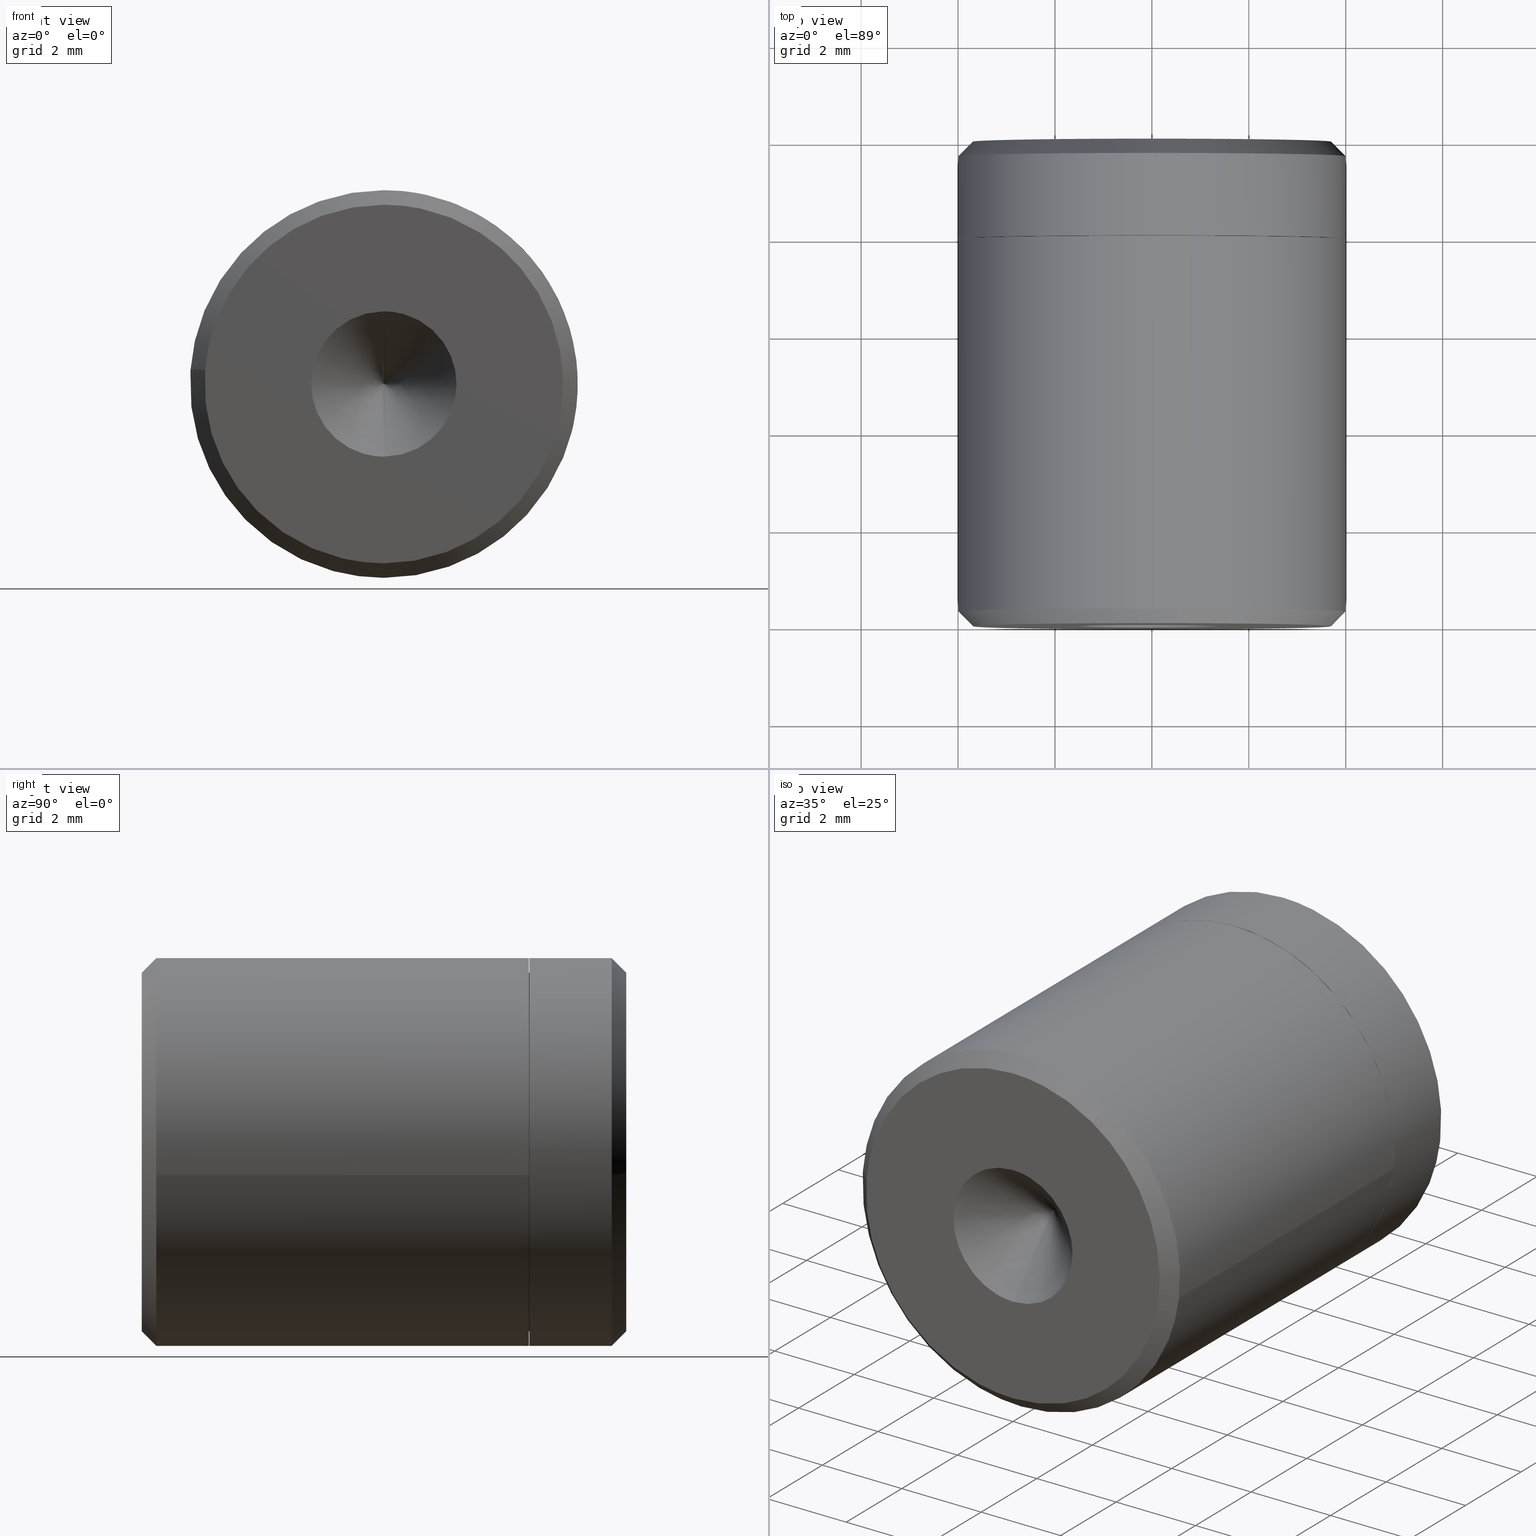
[diagram: canonical four-view strip — front | top / right | iso, engineering-drawing reading convention]
A machine part, canonical four-view strip (front | top / right | iso — engineering-drawing reading convention). The complete STEP part file that produces these views, byte-faithful:
ISO-10303-21;
HEADER;
/****************************************************************
 * Generated by software with PDE/Lib inside                    *
 * PDElib Version 4.4.1-0003, patched  Thursday August 19 11:58 *
 * International Technegroup Inc. (www.iti-oh.com)              *
 ****************************************************************/
FILE_DESCRIPTION((''),'2;1');
FILE_NAME('','2005-07-15T10:19:42',(''),(''),'','CADfix','');
FILE_SCHEMA(('AUTOMOTIVE_DESIGN'));
ENDSEC;
DATA;
#5=APPLICATION_CONTEXT('automotive design');
#6=APPLICATION_PROTOCOL_DEFINITION('Draft International Standard','automotive_design',1998,#5);
#7=PRODUCT_CONTEXT('None',#5,'mechanical');
#8=PRODUCT('body','','None',(#7));
#9=PRODUCT_RELATED_PRODUCT_CATEGORY('part','description',(#8));
#10=PRODUCT_DEFINITION_FORMATION('None','None',#8);
#11=PRODUCT_DEFINITION_CONTEXT('part definition',#5,'design');
#12=PRODUCT_DEFINITION('None','None',#10,#11);
#18=(NAMED_UNIT(*)PLANE_ANGLE_UNIT()SI_UNIT($,.RADIAN.));
#19=DIMENSIONAL_EXPONENTS(0.0,0.0,0.0,0.0,0.0,0.0,0.0);
#20=PLANE_ANGLE_MEASURE_WITH_UNIT(PLANE_ANGLE_MEASURE(0.017453292500000),#18);
#24=(CONVERSION_BASED_UNIT('DEGREE',#20)NAMED_UNIT(#19)PLANE_ANGLE_UNIT());
#28=(NAMED_UNIT(*)SI_UNIT($,.STERADIAN.)SOLID_ANGLE_UNIT());
#32=(LENGTH_UNIT()NAMED_UNIT(*)SI_UNIT(.MILLI.,.METRE.));
#34=UNCERTAINTY_MEASURE_WITH_UNIT(LENGTH_MEASURE(0.001000000000000),#32,'DISTANCE_ACCURACY_VALUE','');
#36=(GEOMETRIC_REPRESENTATION_CONTEXT(3)GLOBAL_UNCERTAINTY_ASSIGNED_CONTEXT((#34))GLOBAL_UNIT_ASSIGNED_CONTEXT((#24,#28,#32))REPRESENTATION_CONTEXT('None','None'));
#37=AXIS2_PLACEMENT_3D('',#38,#39,#40);
#38=CARTESIAN_POINT('',(0.0,0.0,0.0));
#39=DIRECTION('',(0.0,0.0,1.0));
#40=DIRECTION('',(1.0,0.0,0.0));
#41=ADVANCED_BREP_SHAPE_REPRESENTATION('',(#37,#1057),#36);
#42=PRODUCT_DEFINITION_SHAPE('','',#12);
#43=SHAPE_DEFINITION_REPRESENTATION(#42,#41);
#44=CARTESIAN_POINT('',(1.406471545948314,9.742496924999999,3.744573378963047));
#45=CARTESIAN_POINT('',(0.843957595872181,9.742496925000001,3.955855088496580));
#46=CARTESIAN_POINT('',(0.244194097090888,9.742496925000001,3.992538195552666));
#47=CARTESIAN_POINT('',(-3.748344098461780,9.742496925000001,4.236732292643555));
#48=CARTESIAN_POINT('',(-3.992538195552668,9.742496925000001,0.244194097090886));
#49=CARTESIAN_POINT('',(1.406471545948314,7.956437576875000,3.744573378963047));
#50=CARTESIAN_POINT('',(0.843957595872181,7.956437576875000,3.955855088496580));
#51=CARTESIAN_POINT('',(0.244194097090888,7.956437576875000,3.992538195552666));
#52=CARTESIAN_POINT('',(-3.748344098461780,7.956437576875000,4.236732292643555));
#53=CARTESIAN_POINT('',(-3.992538195552668,7.956437576875000,0.244194097090886));
#61=(BOUNDED_SURFACE()B_SPLINE_SURFACE(2,1,((#44,#49),(#45,#50),(#46,#51),(#47,#52),(#48,#53)),.UNSPECIFIED.,.F.,.F.,.U.)B_SPLINE_SURFACE_WITH_KNOTS((3,2,3),(2,2),(0.0,1.325483068223054,7.952898409338326),(0.0,1.0),.UNSPECIFIED.)GEOMETRIC_REPRESENTATION_ITEM()RATIONAL_B_SPLINE_SURFACE(((0.906274169979695,0.906274169979695),(0.941421356237309,0.941421356237309),(1.0,1.0),(0.707106781186548,0.707106781186548),(1.0,1.0)))REPRESENTATION_ITEM('')SURFACE());
#62=CARTESIAN_POINT('',(1.406470727523584,9.699997000001247,3.744574220471318));
#63=VERTEX_POINT('',#62);
#64=CARTESIAN_POINT('',(0.0,9.699997000000000,3.999999999999997));
#65=VERTEX_POINT('',#64);
#66=CARTESIAN_POINT('',(1.406470727523583,9.699997000001249,3.744574220471318));
#67=CARTESIAN_POINT('',(0.726428995726837,9.699997000000000,3.999999999999997));
#68=CARTESIAN_POINT('',(0.0,9.699997000000000,3.999999999999997));
#76=(BOUNDED_CURVE()B_SPLINE_CURVE(2,(#66,#67,#68),.UNSPECIFIED.,.F.,.U.)B_SPLINE_CURVE_WITH_KNOTS((3,3),(0.440284212836687,0.500000000000000),.UNSPECIFIED.)CURVE()GEOMETRIC_REPRESENTATION_ITEM()RATIONAL_B_SPLINE_CURVE((0.893499605957666,0.930038603535032,1.0))REPRESENTATION_ITEM(''));
#77=EDGE_CURVE('',#63,#65,#76,.T.);
#78=ORIENTED_EDGE('',*,*,#77,.T.);
#79=CARTESIAN_POINT('',(-3.992538694620133,9.699996999999630,0.244194127616067));
#80=VERTEX_POINT('',#79);
#81=CARTESIAN_POINT('',(0.0,9.699997000000000,3.999999999999997));
#82=CARTESIAN_POINT('',(-3.762824267619358,9.699997000000000,3.999999999999997));
#83=CARTESIAN_POINT('',(-3.992538694620133,9.699996999999630,0.244194127616067));
#91=(BOUNDED_CURVE()B_SPLINE_CURVE(2,(#81,#82,#83),.UNSPECIFIED.,.F.,.U.)B_SPLINE_CURVE_WITH_KNOTS((3,3),(0.500000000000000,0.739332962241812),.UNSPECIFIED.)CURVE()GEOMETRIC_REPRESENTATION_ITEM()RATIONAL_B_SPLINE_CURVE((1.0,0.719603993283349,0.976072041672866))REPRESENTATION_ITEM(''));
#92=EDGE_CURVE('',#65,#80,#91,.T.);
#93=ORIENTED_EDGE('',*,*,#92,.T.);
#94=CARTESIAN_POINT('',(-3.992538779092364,8.0,0.244192746497483));
#95=VERTEX_POINT('',#94);
#96=CARTESIAN_POINT('',(-3.992538694620133,9.699996999999630,0.244194127616067));
#97=CARTESIAN_POINT('',(-3.992538779092364,8.0,0.244192746497483));
#98=QUASI_UNIFORM_CURVE('',1,(#96,#97),.UNSPECIFIED.,.F.,.U.);
#99=EDGE_CURVE('',#80,#95,#98,.T.);
#100=ORIENTED_EDGE('',*,*,#99,.T.);
#101=CARTESIAN_POINT('',(0.0,8.0,3.999999999999997));
#102=VERTEX_POINT('',#101);
#103=CARTESIAN_POINT('',(0.0,8.0,3.999999999999997));
#104=CARTESIAN_POINT('',(-3.762825571709131,8.0,3.999999999999997));
#105=CARTESIAN_POINT('',(-3.992538779092365,8.0,0.244192746497483));
#113=(BOUNDED_CURVE()B_SPLINE_CURVE(2,(#103,#104,#105),.UNSPECIFIED.,.F.,.U.)B_SPLINE_CURVE_WITH_KNOTS((3,3),(0.500000000000000,0.739333021930164),.UNSPECIFIED.)CURVE()GEOMETRIC_REPRESENTATION_ITEM()RATIONAL_B_SPLINE_CURVE((1.0,0.719603923354095,0.976072169596401))REPRESENTATION_ITEM(''));
#114=EDGE_CURVE('',#102,#95,#113,.T.);
#115=ORIENTED_EDGE('',*,*,#114,.F.);
#116=CARTESIAN_POINT('',(1.406470171425337,8.0,3.744574429342841));
#117=VERTEX_POINT('',#116);
#118=CARTESIAN_POINT('',(1.406470171425337,8.000000000000002,3.744574429342841));
#119=CARTESIAN_POINT('',(0.726428688915489,8.0,3.999999999999996));
#120=CARTESIAN_POINT('',(0.0,8.0,3.999999999999997));
#128=(BOUNDED_CURVE()B_SPLINE_CURVE(2,(#118,#119,#120),.UNSPECIFIED.,.F.,.U.)B_SPLINE_CURVE_WITH_KNOTS((3,3),(0.440284236293467,0.500000000000000),.UNSPECIFIED.)CURVE()GEOMETRIC_REPRESENTATION_ITEM()RATIONAL_B_SPLINE_CURVE((0.893499634663221,0.930038631016360,1.0))REPRESENTATION_ITEM(''));
#129=EDGE_CURVE('',#117,#102,#128,.T.);
#130=ORIENTED_EDGE('',*,*,#129,.F.);
#131=CARTESIAN_POINT('',(1.406470727523584,9.699997000001247,3.744574220471318));
#132=CARTESIAN_POINT('',(1.406470171425337,8.0,3.744574429342841));
#133=QUASI_UNIFORM_CURVE('',1,(#131,#132),.UNSPECIFIED.,.F.,.U.);
#134=EDGE_CURVE('',#63,#117,#133,.T.);
#135=ORIENTED_EDGE('',*,*,#134,.F.);
#136=EDGE_LOOP('',(#78,#93,#100,#115,#130,#135));
#137=FACE_OUTER_BOUND('',#136,.T.);
#138=ADVANCED_FACE('',(#137),#61,.T.);
#139=CARTESIAN_POINT('',(-3.992538195552668,9.742496925000001,0.244194097090886));
#140=CARTESIAN_POINT('',(-4.236732292643556,9.742496925000001,-3.748344098461781));
#141=CARTESIAN_POINT('',(-0.244194097090888,9.742496925000001,-3.992538195552671));
#142=CARTESIAN_POINT('',(3.748344098461780,9.742496925000001,-4.236732292643559));
#143=CARTESIAN_POINT('',(3.992538195552668,9.742496925000001,-0.244194097090891));
#144=CARTESIAN_POINT('',(4.172947848240145,9.742496925000001,2.705477650842676));
#145=CARTESIAN_POINT('',(1.406471545948314,9.742496924999999,3.744573378963047));
#146=CARTESIAN_POINT('',(-3.992538195552668,7.956437576875000,0.244194097090886));
#147=CARTESIAN_POINT('',(-4.236732292643556,7.956437576875000,-3.748344098461781));
#148=CARTESIAN_POINT('',(-0.244194097090888,7.956437576875000,-3.992538195552671));
#149=CARTESIAN_POINT('',(3.748344098461780,7.956437576875000,-4.236732292643559));
#150=CARTESIAN_POINT('',(3.992538195552668,7.956437576875000,-0.244194097090891));
#151=CARTESIAN_POINT('',(4.172947848240145,7.956437576875001,2.705477650842676));
#152=CARTESIAN_POINT('',(1.406471545948314,7.956437576875000,3.744573378963047));
#160=(BOUNDED_SURFACE()B_SPLINE_SURFACE(2,1,((#139,#146),(#140,#147),(#141,#148),(#142,#149),(#143,#150),(#144,#151),(#145,#152)),.UNSPECIFIED.,.F.,.F.,.U.)B_SPLINE_SURFACE_WITH_KNOTS((3,2,2,3),(2,2),(0.0,6.627415341115271,13.254830682230541,18.556762955122760),(0.0,1.0),.UNSPECIFIED.)GEOMETRIC_REPRESENTATION_ITEM()RATIONAL_B_SPLINE_SURFACE(((1.0,1.0),(0.707106781186548,0.707106781186548),(1.0,1.0),(0.707106781186548,0.707106781186548),(1.0,1.0),(0.765685424949238,0.765685424949238),(0.906274169979695,0.906274169979695)))REPRESENTATION_ITEM('')SURFACE());
#161=CARTESIAN_POINT('',(3.972038105454690,9.699996999999648,-0.472136938629806));
#162=VERTEX_POINT('',#161);
#163=CARTESIAN_POINT('',(3.972038105454690,9.699996999999648,-0.472136938629806));
#164=CARTESIAN_POINT('',(4.000000000000001,9.699997000000000,-0.236896478610400));
#165=CARTESIAN_POINT('',(4.0,9.699997000000000,-2.220446E-015));
#166=CARTESIAN_POINT('',(4.000000000000001,9.699997000000000,2.770439168541658));
#167=CARTESIAN_POINT('',(1.406470727523583,9.699997000001249,3.744574220471318));
#175=(BOUNDED_CURVE()B_SPLINE_CURVE(2,(#163,#164,#165,#166,#167),.UNSPECIFIED.,.F.,.U.)B_SPLINE_CURVE_WITH_KNOTS((3,2,3),(0.229562473515412,0.250000000000000,0.440284212836687),.UNSPECIFIED.)CURVE()GEOMETRIC_REPRESENTATION_ITEM()RATIONAL_B_SPLINE_CURVE((0.956026754187431,0.976055948333375,1.0,0.777068177651515,0.893499605957666))REPRESENTATION_ITEM(''));
#176=EDGE_CURVE('',#162,#63,#175,.T.);
#177=ORIENTED_EDGE('',*,*,#176,.T.);
#178=ORIENTED_EDGE('',*,*,#134,.T.);
#179=CARTESIAN_POINT('',(0.0,8.0,-4.000000000000003));
#180=VERTEX_POINT('',#179);
#181=CARTESIAN_POINT('',(0.0,8.0,-4.000000000000003));
#182=CARTESIAN_POINT('',(4.000000000000000,8.0,-4.000000000000003));
#183=CARTESIAN_POINT('',(4.0,8.0,-2.220446E-015));
#184=CARTESIAN_POINT('',(4.000000000000000,8.0,2.770439608037883));
#185=CARTESIAN_POINT('',(1.406470171425337,8.000000000000002,3.744574429342841));
#193=(BOUNDED_CURVE()B_SPLINE_CURVE(2,(#181,#182,#183,#184,#185),.UNSPECIFIED.,.F.,.U.)B_SPLINE_CURVE_WITH_KNOTS((3,2,3),(0.0,0.250000000000000,0.440284236293467),.UNSPECIFIED.)CURVE()GEOMETRIC_REPRESENTATION_ITEM()RATIONAL_B_SPLINE_CURVE((1.0,0.707106781186548,1.0,0.777068150170188,0.893499634663221))REPRESENTATION_ITEM(''));
#194=EDGE_CURVE('',#180,#117,#193,.T.);
#195=ORIENTED_EDGE('',*,*,#194,.F.);
#196=CARTESIAN_POINT('',(-3.992538779092365,8.0,0.244192746497483));
#197=CARTESIAN_POINT('',(-4.000000000000000,8.000000000000002,0.122210360699189));
#198=CARTESIAN_POINT('',(-4.0,8.0,-2.220446E-015));
#199=CARTESIAN_POINT('',(-4.000000000000000,8.0,-4.000000000000003));
#200=CARTESIAN_POINT('',(0.0,8.0,-4.000000000000003));
#208=(BOUNDED_CURVE()B_SPLINE_CURVE(2,(#196,#197,#198,#199,#200),.UNSPECIFIED.,.F.,.U.)B_SPLINE_CURVE_WITH_KNOTS((3,2,3),(0.739333021930164,0.750000000000000,1.0),.UNSPECIFIED.)CURVE()GEOMETRIC_REPRESENTATION_ITEM()RATIONAL_B_SPLINE_CURVE((0.976072169596401,0.987502857832453,1.0,0.707106781186548,1.0))REPRESENTATION_ITEM(''));
#209=EDGE_CURVE('',#95,#180,#208,.T.);
#210=ORIENTED_EDGE('',*,*,#209,.F.);
#211=ORIENTED_EDGE('',*,*,#99,.F.);
#212=CARTESIAN_POINT('',(0.0,9.699997000000000,-4.000000000000003));
#213=VERTEX_POINT('',#212);
#214=CARTESIAN_POINT('',(-3.992538694620133,9.699996999999630,0.244194127616067));
#215=CARTESIAN_POINT('',(-4.000000000000001,9.699996999999998,0.122211053196165));
#216=CARTESIAN_POINT('',(-4.0,9.699997000000000,-2.220446E-015));
#217=CARTESIAN_POINT('',(-4.000000000000000,9.699997000000000,-4.000000000000003));
#218=CARTESIAN_POINT('',(0.0,9.699997000000000,-4.000000000000003));
#226=(BOUNDED_CURVE()B_SPLINE_CURVE(2,(#214,#215,#216,#217,#218),.UNSPECIFIED.,.F.,.U.)B_SPLINE_CURVE_WITH_KNOTS((3,2,3),(0.739332962241812,0.750000000000000,1.0),.UNSPECIFIED.)CURVE()GEOMETRIC_REPRESENTATION_ITEM()RATIONAL_B_SPLINE_CURVE((0.976072041672867,0.987502787903199,1.0,0.707106781186548,1.0))REPRESENTATION_ITEM(''));
#227=EDGE_CURVE('',#80,#213,#226,.T.);
#228=ORIENTED_EDGE('',*,*,#227,.T.);
#229=CARTESIAN_POINT('',(0.0,9.699997000000000,-4.000000000000003));
#230=CARTESIAN_POINT('',(3.552698103800557,9.699997000000000,-4.000000000000003));
#231=CARTESIAN_POINT('',(3.972038105454690,9.699996999999648,-0.472136938629806));
#239=(BOUNDED_CURVE()B_SPLINE_CURVE(2,(#229,#230,#231),.UNSPECIFIED.,.F.,.U.)B_SPLINE_CURVE_WITH_KNOTS((3,3),(0.0,0.229562473515412),.UNSPECIFIED.)CURVE()GEOMETRIC_REPRESENTATION_ITEM()RATIONAL_B_SPLINE_CURVE((1.0,0.731050832853172,0.956026754187431))REPRESENTATION_ITEM(''));
#240=EDGE_CURVE('',#213,#162,#239,.T.);
#241=ORIENTED_EDGE('',*,*,#240,.T.);
#242=EDGE_LOOP('',(#177,#178,#195,#210,#211,#228,#241));
#243=FACE_OUTER_BOUND('',#242,.T.);
#244=ADVANCED_FACE('',(#243),#160,.T.);
#245=CARTESIAN_POINT('',(3.666686658263037,10.007500075000005,-0.435841290484988));
#246=CARTESIAN_POINT('',(3.679160248746634,10.007500075000003,-0.330902293640635));
#247=CARTESIAN_POINT('',(3.685611720084538,10.007500074999999,-0.225421669657706));
#248=CARTESIAN_POINT('',(3.911033389742242,10.007500075000001,3.460190050426831));
#249=CARTESIAN_POINT('',(0.225421669657704,10.007500074999999,3.685611720084536));
#250=CARTESIAN_POINT('',(-3.460190050426834,10.007500075000001,3.911033389742239));
#251=CARTESIAN_POINT('',(-3.685611720084538,10.007500074999999,0.225421669657702));
#252=CARTESIAN_POINT('',(3.979671891634456,9.692309423124998,-0.473044329830587));
#253=CARTESIAN_POINT('',(3.993210217120618,9.692309423124998,-0.359147830074695));
#254=CARTESIAN_POINT('',(4.000212380527541,9.692309423124998,-0.244663470351473));
#255=CARTESIAN_POINT('',(4.244875850879011,9.692309423124998,3.755548910176068));
#256=CARTESIAN_POINT('',(0.244663470351471,9.692309423124998,4.000212380527538));
#257=CARTESIAN_POINT('',(-3.755548910176069,9.692309423124998,4.244875850879009));
#258=CARTESIAN_POINT('',(-4.000212380527541,9.692309423124998,0.244663470351469));
#266=(BOUNDED_SURFACE()B_SPLINE_SURFACE(2,1,((#245,#252),(#246,#253),(#247,#254),(#248,#255),(#249,#256),(#250,#257),(#251,#258)),.UNSPECIFIED.,.F.,.F.,.U.)B_SPLINE_SURFACE_WITH_KNOTS((3,2,2,3),(2,2),(0.0,0.265606164298776,6.905760271768159,13.545914379237541),(0.0,0.445745408809226),.UNSPECIFIED.)GEOMETRIC_REPRESENTATION_ITEM()RATIONAL_B_SPLINE_SURFACE(((0.977505800795127,0.977505800795127),(0.988284271247462,0.988284271247462),(1.0,1.0),(0.707106781186548,0.707106781186548),(1.0,1.0),(0.707106781186548,0.707106781186548),(1.0,1.0)))REPRESENTATION_ITEM('')SURFACE());
#267=ORIENTED_EDGE('',*,*,#176,.F.);
#268=CARTESIAN_POINT('',(3.674134254536043,9.999999999999808,-0.436726550197216));
#269=VERTEX_POINT('',#268);
#270=CARTESIAN_POINT('',(3.674134254536043,9.999999999999808,-0.436726550197216));
#271=CARTESIAN_POINT('',(3.972038105454690,9.699996999999648,-0.472136938629806));
#272=QUASI_UNIFORM_CURVE('',1,(#270,#271),.UNSPECIFIED.,.F.,.U.);
#273=EDGE_CURVE('',#269,#162,#272,.T.);
#274=ORIENTED_EDGE('',*,*,#273,.F.);
#275=CARTESIAN_POINT('',(0.0,10.0,3.699998999999998));
#276=VERTEX_POINT('',#275);
#277=CARTESIAN_POINT('',(3.674134254536043,9.999999999999808,-0.436726550197216));
#278=CARTESIAN_POINT('',(3.699999000000000,9.999999999999998,-0.219129183489387));
#279=CARTESIAN_POINT('',(3.699999000000000,10.0,-2.220446E-015));
#280=CARTESIAN_POINT('',(3.699999000000000,10.000000000000002,3.699998999999997));
#281=CARTESIAN_POINT('',(0.0,10.0,3.699998999999998));
#289=(BOUNDED_CURVE()B_SPLINE_CURVE(2,(#277,#278,#279,#280,#281),.UNSPECIFIED.,.F.,.U.)B_SPLINE_CURVE_WITH_KNOTS((3,2,3),(0.229562473515513,0.250000000000000,0.500000000000000),.UNSPECIFIED.)CURVE()GEOMETRIC_REPRESENTATION_ITEM()RATIONAL_B_SPLINE_CURVE((0.956026754187629,0.976055948333494,1.0,0.707106781186548,1.0))REPRESENTATION_ITEM(''));
#290=EDGE_CURVE('',#269,#276,#289,.T.);
#291=ORIENTED_EDGE('',*,*,#290,.T.);
#292=CARTESIAN_POINT('',(-3.693097756026771,9.999999999998742,0.225879535239909));
#293=VERTEX_POINT('',#292);
#294=CARTESIAN_POINT('',(0.0,10.0,3.699998999999998));
#295=CARTESIAN_POINT('',(-3.480611506827254,10.0,3.699998999999997));
#296=CARTESIAN_POINT('',(-3.693097756026770,9.999999999998742,0.225879535239909));
#304=(BOUNDED_CURVE()B_SPLINE_CURVE(2,(#294,#295,#296),.UNSPECIFIED.,.F.,.U.)B_SPLINE_CURVE_WITH_KNOTS((3,3),(0.500000000000000,0.739332962241090),.UNSPECIFIED.)CURVE()GEOMETRIC_REPRESENTATION_ITEM()RATIONAL_B_SPLINE_CURVE((1.0,0.719603993284195,0.976072041671319))REPRESENTATION_ITEM(''));
#305=EDGE_CURVE('',#276,#293,#304,.T.);
#306=ORIENTED_EDGE('',*,*,#305,.T.);
#307=CARTESIAN_POINT('',(-3.693097756026771,9.999999999998742,0.225879535239909));
#308=CARTESIAN_POINT('',(-3.992538694620133,9.699996999999630,0.244194127616067));
#309=QUASI_UNIFORM_CURVE('',1,(#307,#308),.UNSPECIFIED.,.F.,.U.);
#310=EDGE_CURVE('',#293,#80,#309,.T.);
#311=ORIENTED_EDGE('',*,*,#310,.T.);
#312=ORIENTED_EDGE('',*,*,#92,.F.);
#313=ORIENTED_EDGE('',*,*,#77,.F.);
#314=EDGE_LOOP('',(#267,#274,#291,#306,#311,#312,#313));
#315=FACE_OUTER_BOUND('',#314,.T.);
#316=ADVANCED_FACE('',(#315),#266,.T.);
#317=CARTESIAN_POINT('',(-3.685611720084538,10.007500074999999,0.225421669657702));
#318=CARTESIAN_POINT('',(-3.911033389742242,10.007500075000001,-3.460190050426836));
#319=CARTESIAN_POINT('',(-0.225421669657704,10.007500074999999,-3.685611720084540));
#320=CARTESIAN_POINT('',(3.255098436342748,10.007500075000003,-3.898489449253969));
#321=CARTESIAN_POINT('',(3.666686658263037,10.007500075000005,-0.435841290484988));
#322=CARTESIAN_POINT('',(-4.000212380527541,9.692309423124998,0.244663470351469));
#323=CARTESIAN_POINT('',(-4.244875850879011,9.692309423124998,-3.755548910176072));
#324=CARTESIAN_POINT('',(-0.244663470351471,9.692309423124998,-4.000212380527543));
#325=CARTESIAN_POINT('',(3.532950851533385,9.692309423124998,-4.231261170372016));
#326=CARTESIAN_POINT('',(3.979671891634456,9.692309423124998,-0.473044329830587));
#334=(BOUNDED_SURFACE()B_SPLINE_SURFACE(2,1,((#317,#322),(#318,#323),(#319,#324),(#320,#325),(#321,#326)),.UNSPECIFIED.,.F.,.F.,.U.)B_SPLINE_SURFACE_WITH_KNOTS((3,2,3),(2,2),(0.0,6.640154107469384,13.014702050639990),(0.0,0.445745408809226),.UNSPECIFIED.)GEOMETRIC_REPRESENTATION_ITEM()RATIONAL_B_SPLINE_SURFACE(((1.0,1.0),(0.707106781186548,0.707106781186548),(1.0,1.0),(0.718822509939086,0.718822509939086),(0.977505800795127,0.977505800795127)))REPRESENTATION_ITEM('')SURFACE());
#335=ORIENTED_EDGE('',*,*,#240,.F.);
#336=ORIENTED_EDGE('',*,*,#227,.F.);
#337=ORIENTED_EDGE('',*,*,#310,.F.);
#338=CARTESIAN_POINT('',(0.0,10.0,-3.699999000000002));
#339=VERTEX_POINT('',#338);
#340=CARTESIAN_POINT('',(-3.693097756026771,9.999999999998742,0.225879535239909));
#341=CARTESIAN_POINT('',(-3.699999000000001,10.0,0.113045193661444));
#342=CARTESIAN_POINT('',(-3.699999000000000,10.0,-2.220446E-015));
#343=CARTESIAN_POINT('',(-3.699999000000000,10.000000000000002,-3.699999000000002));
#344=CARTESIAN_POINT('',(0.0,10.0,-3.699999000000002));
#352=(BOUNDED_CURVE()B_SPLINE_CURVE(2,(#340,#341,#342,#343,#344),.UNSPECIFIED.,.F.,.U.)B_SPLINE_CURVE_WITH_KNOTS((3,2,3),(0.739332962241090,0.750000000000000,1.0),.UNSPECIFIED.)CURVE()GEOMETRIC_REPRESENTATION_ITEM()RATIONAL_B_SPLINE_CURVE((0.976072041671318,0.987502787902352,1.0,0.707106781186548,1.0))REPRESENTATION_ITEM(''));
#353=EDGE_CURVE('',#293,#339,#352,.T.);
#354=ORIENTED_EDGE('',*,*,#353,.T.);
#355=CARTESIAN_POINT('',(0.0,10.0,-3.699999000000002));
#356=CARTESIAN_POINT('',(3.286244857842972,10.0,-3.699999000000003));
#357=CARTESIAN_POINT('',(3.674134254536043,9.999999999999808,-0.436726550197216));
#365=(BOUNDED_CURVE()B_SPLINE_CURVE(2,(#355,#356,#357),.UNSPECIFIED.,.F.,.U.)B_SPLINE_CURVE_WITH_KNOTS((3,3),(0.0,0.229562473515513),.UNSPECIFIED.)CURVE()GEOMETRIC_REPRESENTATION_ITEM()RATIONAL_B_SPLINE_CURVE((1.0,0.731050832853054,0.956026754187629))REPRESENTATION_ITEM(''));
#366=EDGE_CURVE('',#339,#269,#365,.T.);
#367=ORIENTED_EDGE('',*,*,#366,.T.);
#368=ORIENTED_EDGE('',*,*,#273,.T.);
#369=EDGE_LOOP('',(#335,#336,#337,#354,#367,#368));
#370=FACE_OUTER_BOUND('',#369,.T.);
#371=ADVANCED_FACE('',(#370),#334,.T.);
#372=CARTESIAN_POINT('',(3.674134254536039,8.000250000000001,-0.436726550195774));
#373=CARTESIAN_POINT('',(3.686633180772225,8.000249999999999,-0.331574406345791));
#374=CARTESIAN_POINT('',(3.693097756026108,8.000249999999999,-0.225879535230434));
#375=CARTESIAN_POINT('',(3.918977291256540,8.000249999999999,3.467218220795675));
#376=CARTESIAN_POINT('',(0.225879535230431,8.000249999999999,3.693097756026106));
#377=CARTESIAN_POINT('',(-3.467218220795676,8.000249999999999,3.918977291256537));
#378=CARTESIAN_POINT('',(-3.693097756026108,8.000249999999999,0.225879535230429));
#379=CARTESIAN_POINT('',(3.674134254536039,7.989743750000001,-0.436726550195774));
#380=CARTESIAN_POINT('',(3.686633180772225,7.989743750000001,-0.331574406345791));
#381=CARTESIAN_POINT('',(3.693097756026108,7.989743750000000,-0.225879535230434));
#382=CARTESIAN_POINT('',(3.918977291256540,7.989743750000000,3.467218220795675));
#383=CARTESIAN_POINT('',(0.225879535230431,7.989743750000000,3.693097756026106));
#384=CARTESIAN_POINT('',(-3.467218220795676,7.989743750000000,3.918977291256537));
#385=CARTESIAN_POINT('',(-3.693097756026108,7.989743750000000,0.225879535230429));
#393=(BOUNDED_SURFACE()B_SPLINE_SURFACE(2,1,((#372,#379),(#373,#380),(#374,#381),(#375,#382),(#376,#383),(#377,#384),(#378,#385)),.UNSPECIFIED.,.F.,.F.,.U.)B_SPLINE_SURFACE_WITH_KNOTS((3,2,2,3),(2,2),(0.0,0.245214362650703,6.375573428918258,12.505932495185810),(0.0,0.010506250000001),.UNSPECIFIED.)GEOMETRIC_REPRESENTATION_ITEM()RATIONAL_B_SPLINE_SURFACE(((0.977505800795127,0.977505800795127),(0.988284271247462,0.988284271247462),(1.0,1.0),(0.707106781186548,0.707106781186548),(1.0,1.0),(0.707106781186548,0.707106781186548),(1.0,1.0)))REPRESENTATION_ITEM('')SURFACE());
#394=CARTESIAN_POINT('',(3.674134393558822,7.999999999999112,-0.436725380608634));
#395=VERTEX_POINT('',#394);
#396=CARTESIAN_POINT('',(0.0,8.0,3.699998999999998));
#397=VERTEX_POINT('',#396);
#398=CARTESIAN_POINT('',(3.674134393558823,7.999999999999112,-0.436725380608634));
#399=CARTESIAN_POINT('',(3.699999000000001,8.0,-0.219128592512045));
#400=CARTESIAN_POINT('',(3.699999000000000,8.0,-2.220446E-015));
#401=CARTESIAN_POINT('',(3.699999000000000,8.0,3.699998999999997));
#402=CARTESIAN_POINT('',(0.0,8.0,3.699998999999998));
#410=(BOUNDED_CURVE()B_SPLINE_CURVE(2,(#398,#399,#400,#401,#402),.UNSPECIFIED.,.F.,.U.)B_SPLINE_CURVE_WITH_KNOTS((3,2,3),(0.229562527314449,0.250000000000000,0.500000000000000),.UNSPECIFIED.)CURVE()GEOMETRIC_REPRESENTATION_ITEM()RATIONAL_B_SPLINE_CURVE((0.956026859635772,0.976056011362868,1.0,0.707106781186548,1.0))REPRESENTATION_ITEM(''));
#411=EDGE_CURVE('',#395,#397,#410,.T.);
#412=ORIENTED_EDGE('',*,*,#411,.T.);
#413=CARTESIAN_POINT('',(-3.693097943771889,7.999999999999963,0.225876465572188));
#414=VERTEX_POINT('',#413);
#415=CARTESIAN_POINT('',(0.0,8.0,3.699998999999998));
#416=CARTESIAN_POINT('',(-3.480614405294417,8.0,3.699998999999998));
#417=CARTESIAN_POINT('',(-3.693097943771889,7.999999999999963,0.225876465572189));
#425=(BOUNDED_CURVE()B_SPLINE_CURVE(2,(#415,#416,#417),.UNSPECIFIED.,.F.,.U.)B_SPLINE_CURVE_WITH_KNOTS((3,3),(0.500000000000000,0.739333105660791),.UNSPECIFIED.)CURVE()GEOMETRIC_REPRESENTATION_ITEM()RATIONAL_B_SPLINE_CURVE((1.0,0.719603825257563,0.976072349047232))REPRESENTATION_ITEM(''));
#426=EDGE_CURVE('',#397,#414,#425,.T.);
#427=ORIENTED_EDGE('',*,*,#426,.T.);
#428=CARTESIAN_POINT('',(-3.693097941509930,7.990000000000000,0.225876502555890));
#429=VERTEX_POINT('',#428);
#430=CARTESIAN_POINT('',(-3.693097943771889,7.999999999999963,0.225876465572188));
#431=CARTESIAN_POINT('',(-3.693097941509930,7.990000000000000,0.225876502555890));
#432=QUASI_UNIFORM_CURVE('',1,(#430,#431),.UNSPECIFIED.,.F.,.U.);
#433=EDGE_CURVE('',#414,#429,#432,.T.);
#434=ORIENTED_EDGE('',*,*,#433,.T.);
#435=CARTESIAN_POINT('',(0.0,7.990000000000000,3.699998999999998));
#436=VERTEX_POINT('',#435);
#437=CARTESIAN_POINT('',(0.0,7.990000000000000,3.699998999999998));
#438=CARTESIAN_POINT('',(-3.480614370373454,7.989999999999999,3.699998999999997));
#439=CARTESIAN_POINT('',(-3.693097941509930,7.990000000000000,0.225876502555890));
#447=(BOUNDED_CURVE()B_SPLINE_CURVE(2,(#437,#438,#439),.UNSPECIFIED.,.F.,.U.)B_SPLINE_CURVE_WITH_KNOTS((3,3),(0.500000000000000,0.739333103932859),.UNSPECIFIED.)CURVE()GEOMETRIC_REPRESENTATION_ITEM()RATIONAL_B_SPLINE_CURVE((1.0,0.719603827281961,0.976072345343941))REPRESENTATION_ITEM(''));
#448=EDGE_CURVE('',#436,#429,#447,.T.);
#449=ORIENTED_EDGE('',*,*,#448,.F.);
#450=CARTESIAN_POINT('',(3.674134391885186,7.990000000000000,-0.436725394688837));
#451=VERTEX_POINT('',#450);
#452=CARTESIAN_POINT('',(3.674134391885186,7.990000000000000,-0.436725394688837));
#453=CARTESIAN_POINT('',(3.699999000000000,7.990000000000001,-0.219128599626573));
#454=CARTESIAN_POINT('',(3.699999000000000,7.990000000000000,-2.220446E-015));
#455=CARTESIAN_POINT('',(3.699999000000000,7.990000000000000,3.699998999999997));
#456=CARTESIAN_POINT('',(0.0,7.990000000000000,3.699998999999998));
#464=(BOUNDED_CURVE()B_SPLINE_CURVE(2,(#452,#453,#454,#455,#456),.UNSPECIFIED.,.F.,.U.)B_SPLINE_CURVE_WITH_KNOTS((3,2,3),(0.229562526666786,0.250000000000000,0.500000000000000),.UNSPECIFIED.)CURVE()GEOMETRIC_REPRESENTATION_ITEM()RATIONAL_B_SPLINE_CURVE((0.956026858366326,0.976056010604084,1.0,0.707106781186548,1.0))REPRESENTATION_ITEM(''));
#465=EDGE_CURVE('',#451,#436,#464,.T.);
#466=ORIENTED_EDGE('',*,*,#465,.F.);
#467=CARTESIAN_POINT('',(3.674134393558822,7.999999999999112,-0.436725380608634));
#468=CARTESIAN_POINT('',(3.674134391885186,7.990000000000000,-0.436725394688837));
#469=QUASI_UNIFORM_CURVE('',1,(#467,#468),.UNSPECIFIED.,.F.,.U.);
#470=EDGE_CURVE('',#395,#451,#469,.T.);
#471=ORIENTED_EDGE('',*,*,#470,.F.);
#472=EDGE_LOOP('',(#412,#427,#434,#449,#466,#471));
#473=FACE_OUTER_BOUND('',#472,.T.);
#474=ADVANCED_FACE('',(#473),#393,.T.);
#475=CARTESIAN_POINT('',(-3.693097756026108,8.000249999999999,0.225879535230429));
#476=CARTESIAN_POINT('',(-3.918977291256540,8.000249999999999,-3.467218220795679));
#477=CARTESIAN_POINT('',(-0.225879535230431,8.000249999999999,-3.693097756026111));
#478=CARTESIAN_POINT('',(3.261710034562662,8.000249999999998,-3.906407872124157));
#479=CARTESIAN_POINT('',(3.674134254536039,8.000250000000001,-0.436726550195774));
#480=CARTESIAN_POINT('',(-3.693097756026108,7.989743750000000,0.225879535230429));
#481=CARTESIAN_POINT('',(-3.918977291256540,7.989743750000000,-3.467218220795679));
#482=CARTESIAN_POINT('',(-0.225879535230431,7.989743750000000,-3.693097756026111));
#483=CARTESIAN_POINT('',(3.261710034562662,7.989743750000001,-3.906407872124157));
#484=CARTESIAN_POINT('',(3.674134254536039,7.989743750000001,-0.436726550195774));
#492=(BOUNDED_SURFACE()B_SPLINE_SURFACE(2,1,((#475,#480),(#476,#481),(#477,#482),(#478,#483),(#479,#484)),.UNSPECIFIED.,.F.,.F.,.U.)B_SPLINE_SURFACE_WITH_KNOTS((3,2,3),(2,2),(0.0,6.130359066267556,12.015503769884409),(0.0,0.010506250000001),.UNSPECIFIED.)GEOMETRIC_REPRESENTATION_ITEM()RATIONAL_B_SPLINE_SURFACE(((1.0,1.0),(0.707106781186548,0.707106781186548),(1.0,1.0),(0.718822509939086,0.718822509939086),(0.977505800795127,0.977505800795127)))REPRESENTATION_ITEM('')SURFACE());
#493=CARTESIAN_POINT('',(0.0,8.0,-3.699999000000002));
#494=VERTEX_POINT('',#493);
#495=CARTESIAN_POINT('',(0.0,8.0,-3.699999000000002));
#496=CARTESIAN_POINT('',(3.286245911320241,8.0,-3.699999000000002));
#497=CARTESIAN_POINT('',(3.674134393558823,7.999999999999112,-0.436725380608634));
#505=(BOUNDED_CURVE()B_SPLINE_CURVE(2,(#495,#496,#497),.UNSPECIFIED.,.F.,.U.)B_SPLINE_CURVE_WITH_KNOTS((3,3),(0.0,0.229562527314449),.UNSPECIFIED.)CURVE()GEOMETRIC_REPRESENTATION_ITEM()RATIONAL_B_SPLINE_CURVE((1.0,0.731050769823680,0.956026859635772))REPRESENTATION_ITEM(''));
#506=EDGE_CURVE('',#494,#395,#505,.T.);
#507=ORIENTED_EDGE('',*,*,#506,.T.);
#508=ORIENTED_EDGE('',*,*,#470,.T.);
#509=CARTESIAN_POINT('',(0.0,7.990000000000000,-3.699999000000002));
#510=VERTEX_POINT('',#509);
#511=CARTESIAN_POINT('',(0.0,7.990000000000000,-3.699999000000002));
#512=CARTESIAN_POINT('',(3.286245898637868,7.990000000000001,-3.699999000000003));
#513=CARTESIAN_POINT('',(3.674134391885186,7.990000000000000,-0.436725394688837));
#521=(BOUNDED_CURVE()B_SPLINE_CURVE(2,(#511,#512,#513),.UNSPECIFIED.,.F.,.U.)B_SPLINE_CURVE_WITH_KNOTS((3,3),(0.0,0.229562526666786),.UNSPECIFIED.)CURVE()GEOMETRIC_REPRESENTATION_ITEM()RATIONAL_B_SPLINE_CURVE((1.0,0.731050770582464,0.956026858366326))REPRESENTATION_ITEM(''));
#522=EDGE_CURVE('',#510,#451,#521,.T.);
#523=ORIENTED_EDGE('',*,*,#522,.F.);
#524=CARTESIAN_POINT('',(-3.693097941509930,7.990000000000000,0.225876502555890));
#525=CARTESIAN_POINT('',(-3.699999000000000,7.990000000000001,0.113043673063177));
#526=CARTESIAN_POINT('',(-3.699999000000000,7.990000000000000,-2.220446E-015));
#527=CARTESIAN_POINT('',(-3.699999000000000,7.990000000000000,-3.699999000000002));
#528=CARTESIAN_POINT('',(0.0,7.990000000000000,-3.699999000000002));
#536=(BOUNDED_CURVE()B_SPLINE_CURVE(2,(#524,#525,#526,#527,#528),.UNSPECIFIED.,.F.,.U.)B_SPLINE_CURVE_WITH_KNOTS((3,2,3),(0.739333103932859,0.750000000000000,1.0),.UNSPECIFIED.)CURVE()GEOMETRIC_REPRESENTATION_ITEM()RATIONAL_B_SPLINE_CURVE((0.976072345343941,0.987502953904586,1.0,0.707106781186548,1.0))REPRESENTATION_ITEM(''));
#537=EDGE_CURVE('',#429,#510,#536,.T.);
#538=ORIENTED_EDGE('',*,*,#537,.F.);
#539=ORIENTED_EDGE('',*,*,#433,.F.);
#540=CARTESIAN_POINT('',(-3.693097943771889,7.999999999999963,0.225876465572189));
#541=CARTESIAN_POINT('',(-3.699999000000001,8.000000000000002,0.113043654519479));
#542=CARTESIAN_POINT('',(-3.699999000000000,8.0,-2.220446E-015));
#543=CARTESIAN_POINT('',(-3.699999000000000,8.0,-3.699999000000002));
#544=CARTESIAN_POINT('',(0.0,8.0,-3.699999000000002));
#552=(BOUNDED_CURVE()B_SPLINE_CURVE(2,(#540,#541,#542,#543,#544),.UNSPECIFIED.,.F.,.U.)B_SPLINE_CURVE_WITH_KNOTS((3,2,3),(0.739333105660791,0.750000000000000,1.0),.UNSPECIFIED.)CURVE()GEOMETRIC_REPRESENTATION_ITEM()RATIONAL_B_SPLINE_CURVE((0.976072349047232,0.987502955928984,1.0,0.707106781186548,1.0))REPRESENTATION_ITEM(''));
#553=EDGE_CURVE('',#414,#494,#552,.T.);
#554=ORIENTED_EDGE('',*,*,#553,.T.);
#555=EDGE_LOOP('',(#507,#508,#523,#538,#539,#554));
#556=FACE_OUTER_BOUND('',#555,.T.);
#557=ADVANCED_FACE('',(#556),#492,.T.);
#558=CARTESIAN_POINT('',(1.986013530395583,-0.007500075000000,3.112924558467743));
#559=CARTESIAN_POINT('',(3.855062846060085,-0.007500075000000,1.920490511266350));
#560=CARTESIAN_POINT('',(3.681116282815173,-0.007500075000000,-0.289710134477453));
#561=CARTESIAN_POINT('',(3.391406148337723,-0.007500075000000,-3.970826417292627));
#562=CARTESIAN_POINT('',(-0.289710134477451,-0.007500075000000,-3.681116282815176));
#563=CARTESIAN_POINT('',(-3.970826417292625,-0.007500075000000,-3.391406148337723));
#564=CARTESIAN_POINT('',(-3.681116282815173,-0.007500075000000,0.289710134477449));
#565=CARTESIAN_POINT('',(2.155536812275419,0.307690576875004,3.378639358150241));
#566=CARTESIAN_POINT('',(4.184125511301321,0.307690576875004,2.084420841702773));
#567=CARTESIAN_POINT('',(3.995331117554910,0.307690576875004,-0.314439378281086));
#568=CARTESIAN_POINT('',(3.680891739273826,0.307690576875004,-4.309770495835998));
#569=CARTESIAN_POINT('',(-0.314439378281084,0.307690576875004,-3.995331117554913));
#570=CARTESIAN_POINT('',(-4.309770495835994,0.307690576875004,-3.680891739273827));
#571=CARTESIAN_POINT('',(-3.995331117554910,0.307690576875004,0.314439378281082));
#579=(BOUNDED_SURFACE()B_SPLINE_SURFACE(2,1,((#558,#565),(#559,#566),(#560,#567),(#561,#568),(#562,#569),(#563,#570),(#564,#571)),.UNSPECIFIED.,.F.,.F.,.U.)B_SPLINE_SURFACE_WITH_KNOTS((3,2,2,3),(2,2),(0.0,4.515302482016030,11.155453190863129,17.795603899710240),(0.0,0.445743923008503),.UNSPECIFIED.)GEOMETRIC_REPRESENTATION_ITEM()RATIONAL_B_SPLINE_SURFACE(((0.872532871172386,0.872532871172386),(0.800832611206852,0.800832611206852),(1.0,1.0),(0.707106781186548,0.707106781186548),(1.0,1.0),(0.707106781186548,0.707106781186548),(1.0,1.0)))REPRESENTATION_ITEM('')SURFACE());
#580=CARTESIAN_POINT('',(3.972036815488612,0.300002999999665,-0.472135082791438));
#581=VERTEX_POINT('',#580);
#582=CARTESIAN_POINT('',(2.151402098084278,0.300003000000068,3.372158509376904));
#583=VERTEX_POINT('',#582);
#584=CARTESIAN_POINT('',(3.972036815488612,0.300002999999665,-0.472135082791438));
#585=CARTESIAN_POINT('',(3.999998000000000,0.300003000000004,-0.236895511893493));
#586=CARTESIAN_POINT('',(3.999998000000000,0.300003000000004,-2.220446E-015));
#587=CARTESIAN_POINT('',(3.999998000000000,0.300003000000004,2.192773527669965));
#588=CARTESIAN_POINT('',(2.151402098084278,0.300003000000068,3.372158509376905));
#596=(BOUNDED_CURVE()B_SPLINE_CURVE(2,(#584,#585,#586,#587,#588),.UNSPECIFIED.,.F.,.U.)B_SPLINE_CURVE_WITH_KNOTS((3,2,3),(0.229562544944996,0.250000000000000,0.407950112627478),.UNSPECIFIED.)CURVE()GEOMETRIC_REPRESENTATION_ITEM()RATIONAL_B_SPLINE_CURVE((0.956026894192386,0.976056032018338,1.0,0.814949932402363,0.863729296954879))REPRESENTATION_ITEM(''));
#597=EDGE_CURVE('',#581,#583,#596,.T.);
#598=ORIENTED_EDGE('',*,*,#597,.T.);
#599=CARTESIAN_POINT('',(1.990047397902964,1.696192E-013,3.119247337756639));
#600=VERTEX_POINT('',#599);
#601=CARTESIAN_POINT('',(1.990047397902964,1.696192E-013,3.119247337756639));
#602=CARTESIAN_POINT('',(2.151402098084278,0.300003000000068,3.372158509376904));
#603=QUASI_UNIFORM_CURVE('',1,(#601,#602),.UNSPECIFIED.,.F.,.U.);
#604=EDGE_CURVE('',#600,#583,#603,.T.);
#605=ORIENTED_EDGE('',*,*,#604,.F.);
#606=CARTESIAN_POINT('',(0.0,0.0,-3.699999000000002));
#607=VERTEX_POINT('',#606);
#608=CARTESIAN_POINT('',(0.0,0.0,-3.699999000000002));
#609=CARTESIAN_POINT('',(3.699999000000000,0.0,-3.699999000000002));
#610=CARTESIAN_POINT('',(3.699999000000000,0.0,-2.220446E-015));
#611=CARTESIAN_POINT('',(3.699999000000001,0.0,2.028315979056592));
#612=CARTESIAN_POINT('',(1.990047397902964,1.696192E-013,3.119247337756640));
#620=(BOUNDED_CURVE()B_SPLINE_CURVE(2,(#608,#609,#610,#611,#612),.UNSPECIFIED.,.F.,.U.)B_SPLINE_CURVE_WITH_KNOTS((3,2,3),(0.0,0.250000000000000,0.407950112627304),.UNSPECIFIED.)CURVE()GEOMETRIC_REPRESENTATION_ITEM()RATIONAL_B_SPLINE_CURVE((1.0,0.707106781186548,1.0,0.814949932402566,0.863729296954772))REPRESENTATION_ITEM(''));
#621=EDGE_CURVE('',#607,#600,#620,.T.);
#622=ORIENTED_EDGE('',*,*,#621,.F.);
#623=CARTESIAN_POINT('',(-3.688593137895713,1.191157E-012,0.290298575743090));
#624=VERTEX_POINT('',#623);
#625=CARTESIAN_POINT('',(-3.688593137895713,1.191157E-012,0.290298575743090));
#626=CARTESIAN_POINT('',(-3.699999000000001,0.0,0.145373356647378));
#627=CARTESIAN_POINT('',(-3.699999000000000,0.0,-2.220446E-015));
#628=CARTESIAN_POINT('',(-3.699999000000000,0.0,-3.699999000000002));
#629=CARTESIAN_POINT('',(0.0,0.0,-3.699999000000002));
#637=(BOUNDED_CURVE()B_SPLINE_CURVE(2,(#625,#626,#627,#628,#629),.UNSPECIFIED.,.F.,.U.)B_SPLINE_CURVE_WITH_KNOTS((3,2,3),(0.736331300631924,0.750000000000000,1.0),.UNSPECIFIED.)CURVE()GEOMETRIC_REPRESENTATION_ITEM()RATIONAL_B_SPLINE_CURVE((0.969723356170057,0.983986122580363,1.0,0.707106781186548,1.0))REPRESENTATION_ITEM(''));
#638=EDGE_CURVE('',#624,#607,#637,.T.);
#639=ORIENTED_EDGE('',*,*,#638,.F.);
#640=CARTESIAN_POINT('',(-3.987667341097883,0.300003000000101,0.313836225993938));
#641=VERTEX_POINT('',#640);
#642=CARTESIAN_POINT('',(-3.688593137895713,1.191157E-012,0.290298575743090));
#643=CARTESIAN_POINT('',(-3.987667341097883,0.300003000000101,0.313836225993938));
#644=QUASI_UNIFORM_CURVE('',1,(#642,#643),.UNSPECIFIED.,.F.,.U.);
#645=EDGE_CURVE('',#624,#641,#644,.T.);
#646=ORIENTED_EDGE('',*,*,#645,.T.);
#647=CARTESIAN_POINT('',(-3.992537781884276,0.300002999999738,0.244192670297197));
#648=VERTEX_POINT('',#647);
#649=CARTESIAN_POINT('',(-3.987667341097882,0.300003000000101,0.313836225993938));
#650=CARTESIAN_POINT('',(-3.990406203231539,0.300003000000004,0.279035682978473));
#651=CARTESIAN_POINT('',(-3.992537781884276,0.300002999999738,0.244192670297197));
#659=(BOUNDED_CURVE()B_SPLINE_CURVE(2,(#649,#650,#651),.UNSPECIFIED.,.F.,.U.)B_SPLINE_CURVE_WITH_KNOTS((3,3),(0.736331300632703,0.739333022584997),.UNSPECIFIED.)CURVE()GEOMETRIC_REPRESENTATION_ITEM()RATIONAL_B_SPLINE_CURVE((0.969723356171682,0.972855538530931,0.976072170999833))REPRESENTATION_ITEM(''));
#660=EDGE_CURVE('',#641,#648,#659,.T.);
#661=ORIENTED_EDGE('',*,*,#660,.T.);
#662=CARTESIAN_POINT('',(0.0,0.300003000000004,-3.999998000000003));
#663=VERTEX_POINT('',#662);
#664=CARTESIAN_POINT('',(-3.992537781884276,0.300002999999738,0.244192670297197));
#665=CARTESIAN_POINT('',(-3.999998000000001,0.300003000000004,0.122210291996722));
#666=CARTESIAN_POINT('',(-3.999998000000000,0.300003000000004,-2.220446E-015));
#667=CARTESIAN_POINT('',(-3.999998000000001,0.300003000000004,-3.999998000000002));
#668=CARTESIAN_POINT('',(0.0,0.300003000000004,-3.999998000000003));
#676=(BOUNDED_CURVE()B_SPLINE_CURVE(2,(#664,#665,#666,#667,#668),.UNSPECIFIED.,.F.,.U.)B_SPLINE_CURVE_WITH_KNOTS((3,2,3),(0.739333022584997,0.750000000000000,1.0),.UNSPECIFIED.)CURVE()GEOMETRIC_REPRESENTATION_ITEM()RATIONAL_B_SPLINE_CURVE((0.976072170999833,0.987502858599637,1.0,0.707106781186547,1.0))REPRESENTATION_ITEM(''));
#677=EDGE_CURVE('',#648,#663,#676,.T.);
#678=ORIENTED_EDGE('',*,*,#677,.T.);
#679=CARTESIAN_POINT('',(0.0,0.300003000000004,-3.999998000000003));
#680=CARTESIAN_POINT('',(3.552697839576823,0.300003000000004,-3.999998000000003));
#681=CARTESIAN_POINT('',(3.972036815488612,0.300002999999665,-0.472135082791438));
#689=(BOUNDED_CURVE()B_SPLINE_CURVE(2,(#679,#680,#681),.UNSPECIFIED.,.F.,.U.)B_SPLINE_CURVE_WITH_KNOTS((3,3),(0.0,0.229562544944996),.UNSPECIFIED.)CURVE()GEOMETRIC_REPRESENTATION_ITEM()RATIONAL_B_SPLINE_CURVE((1.0,0.731050749168209,0.956026894192386))REPRESENTATION_ITEM(''));
#690=EDGE_CURVE('',#663,#581,#689,.T.);
#691=ORIENTED_EDGE('',*,*,#690,.T.);
#692=EDGE_LOOP('',(#598,#605,#622,#639,#646,#661,#678,#691));
#693=FACE_OUTER_BOUND('',#692,.T.);
#694=ADVANCED_FACE('',(#693),#579,.T.);
#695=CARTESIAN_POINT('',(-3.681116282815173,-0.007500075000000,0.289710134477449));
#696=CARTESIAN_POINT('',(-3.391406148337723,-0.007500075000000,3.970826417292622));
#697=CARTESIAN_POINT('',(0.289710134477451,-0.007500075000000,3.681116282815171));
#698=CARTESIAN_POINT('',(1.208793519046832,-0.007500075000000,3.608782851735413));
#699=CARTESIAN_POINT('',(1.986013530395583,-0.007500075000000,3.112924558467743));
#700=CARTESIAN_POINT('',(-3.995331117554910,0.307690576875004,0.314439378281082));
#701=CARTESIAN_POINT('',(-3.680891739273826,0.307690576875004,4.309770495835993));
#702=CARTESIAN_POINT('',(0.314439378281084,0.307690576875004,3.995331117554908));
#703=CARTESIAN_POINT('',(1.311974409472628,0.307690576875004,3.916823407982783));
#704=CARTESIAN_POINT('',(2.155536812275419,0.307690576875004,3.378639358150241));
#712=(BOUNDED_SURFACE()B_SPLINE_SURFACE(2,1,((#695,#700),(#696,#701),(#697,#702),(#698,#703),(#699,#704)),.UNSPECIFIED.,.F.,.F.,.U.)B_SPLINE_SURFACE_WITH_KNOTS((3,2,3),(2,2),(0.0,6.640150708847104,8.764998935678179),(0.0,0.445743923008503),.UNSPECIFIED.)GEOMETRIC_REPRESENTATION_ITEM()RATIONAL_B_SPLINE_SURFACE(((1.0,1.0),(0.707106781186548,0.707106781186548),(1.0,1.0),(0.906274169979695,0.906274169979695),(0.872532871172386,0.872532871172386)))REPRESENTATION_ITEM('')SURFACE());
#713=CARTESIAN_POINT('',(0.0,0.300003000000004,3.999997999999998));
#714=VERTEX_POINT('',#713);
#715=CARTESIAN_POINT('',(2.151402098084278,0.300003000000068,3.372158509376904));
#716=CARTESIAN_POINT('',(1.167311637862257,0.300003000000004,3.999997999999998));
#717=CARTESIAN_POINT('',(0.0,0.300003000000004,3.999997999999998));
#725=(BOUNDED_CURVE()B_SPLINE_CURVE(2,(#715,#716,#717),.UNSPECIFIED.,.F.,.U.)B_SPLINE_CURVE_WITH_KNOTS((3,3),(0.407950112627478,0.500000000000000),.UNSPECIFIED.)CURVE()GEOMETRIC_REPRESENTATION_ITEM()RATIONAL_B_SPLINE_CURVE((0.863729296954879,0.892156848784185,1.0))REPRESENTATION_ITEM(''));
#726=EDGE_CURVE('',#583,#714,#725,.T.);
#727=ORIENTED_EDGE('',*,*,#726,.T.);
#728=CARTESIAN_POINT('',(0.0,0.300003000000004,3.999997999999998));
#729=CARTESIAN_POINT('',(-3.697560117850483,0.300003000000004,3.999997999999998));
#730=CARTESIAN_POINT('',(-3.987667341097883,0.300003000000101,0.313836225993938));
#738=(BOUNDED_CURVE()B_SPLINE_CURVE(2,(#728,#729,#730),.UNSPECIFIED.,.F.,.U.)B_SPLINE_CURVE_WITH_KNOTS((3,3),(0.500000000000000,0.736331300632704),.UNSPECIFIED.)CURVE()GEOMETRIC_REPRESENTATION_ITEM()RATIONAL_B_SPLINE_CURVE((1.0,0.723120658605271,0.969723356171684))REPRESENTATION_ITEM(''));
#739=EDGE_CURVE('',#714,#641,#738,.T.);
#740=ORIENTED_EDGE('',*,*,#739,.T.);
#741=ORIENTED_EDGE('',*,*,#645,.F.);
#742=CARTESIAN_POINT('',(0.0,0.0,3.699998999999998));
#743=VERTEX_POINT('',#742);
#744=CARTESIAN_POINT('',(0.0,0.0,3.699998999999998));
#745=CARTESIAN_POINT('',(-3.420243894728016,0.0,3.699998999999999));
#746=CARTESIAN_POINT('',(-3.688593137895713,1.191157E-012,0.290298575743090));
#754=(BOUNDED_CURVE()B_SPLINE_CURVE(2,(#744,#745,#746),.UNSPECIFIED.,.F.,.U.)B_SPLINE_CURVE_WITH_KNOTS((3,3),(0.500000000000000,0.736331300631925),.UNSPECIFIED.)CURVE()GEOMETRIC_REPRESENTATION_ITEM()RATIONAL_B_SPLINE_CURVE((1.0,0.723120658606184,0.969723356170058))REPRESENTATION_ITEM(''));
#755=EDGE_CURVE('',#743,#624,#754,.T.);
#756=ORIENTED_EDGE('',*,*,#755,.F.);
#757=CARTESIAN_POINT('',(1.990047397902964,1.696192E-013,3.119247337756640));
#758=CARTESIAN_POINT('',(1.079763513078717,0.0,3.699998999999998));
#759=CARTESIAN_POINT('',(0.0,0.0,3.699998999999998));
#767=(BOUNDED_CURVE()B_SPLINE_CURVE(2,(#757,#758,#759),.UNSPECIFIED.,.F.,.U.)B_SPLINE_CURVE_WITH_KNOTS((3,3),(0.407950112627304,0.500000000000000),.UNSPECIFIED.)CURVE()GEOMETRIC_REPRESENTATION_ITEM()RATIONAL_B_SPLINE_CURVE((0.863729296954772,0.892156848783981,1.0))REPRESENTATION_ITEM(''));
#768=EDGE_CURVE('',#600,#743,#767,.T.);
#769=ORIENTED_EDGE('',*,*,#768,.F.);
#770=ORIENTED_EDGE('',*,*,#604,.T.);
#771=EDGE_LOOP('',(#727,#740,#741,#756,#769,#770));
#772=FACE_OUTER_BOUND('',#771,.T.);
#773=ADVANCED_FACE('',(#772),#712,.T.);
#774=CARTESIAN_POINT('',(3.972037112445138,8.182249925000001,-0.472136820592801));
#775=CARTESIAN_POINT('',(3.985549465406806,8.182249925000001,-0.358458824937184));
#776=CARTESIAN_POINT('',(3.992538195552668,8.182249925000001,-0.244194097090891));
#777=CARTESIAN_POINT('',(4.236732292643556,8.182249925000001,3.748344098461778));
#778=CARTESIAN_POINT('',(0.244194097090888,8.182249925000001,3.992538195552666));
#779=CARTESIAN_POINT('',(-3.748344098461780,8.182249925000001,4.236732292643555));
#780=CARTESIAN_POINT('',(-3.992538195552668,8.182249925000001,0.244194097090886));
#781=CARTESIAN_POINT('',(3.972037112445138,0.102946826875003,-0.472136820592801));
#782=CARTESIAN_POINT('',(3.985549465406806,0.102946826875002,-0.358458824937184));
#783=CARTESIAN_POINT('',(3.992538195552668,0.102946826875003,-0.244194097090891));
#784=CARTESIAN_POINT('',(4.236732292643556,0.102946826875002,3.748344098461778));
#785=CARTESIAN_POINT('',(0.244194097090888,0.102946826875003,3.992538195552666));
#786=CARTESIAN_POINT('',(-3.748344098461780,0.102946826875002,4.236732292643555));
#787=CARTESIAN_POINT('',(-3.992538195552668,0.102946826875003,0.244194097090886));
#795=(BOUNDED_SURFACE()B_SPLINE_SURFACE(2,1,((#774,#781),(#775,#782),(#776,#783),(#777,#784),(#778,#785),(#779,#786),(#780,#787)),.UNSPECIFIED.,.F.,.F.,.U.)B_SPLINE_SURFACE_WITH_KNOTS((3,2,2,3),(2,2),(0.0,0.265096613644611,6.892511954759883,13.519927295875160),(0.0,8.079303098124999),.UNSPECIFIED.)GEOMETRIC_REPRESENTATION_ITEM()RATIONAL_B_SPLINE_SURFACE(((0.977505800795127,0.977505800795127),(0.988284271247462,0.988284271247462),(1.0,1.0),(0.707106781186548,0.707106781186548),(1.0,1.0),(0.707106781186548,0.707106781186548),(1.0,1.0)))REPRESENTATION_ITEM('')SURFACE());
#796=ORIENTED_EDGE('',*,*,#597,.F.);
#797=CARTESIAN_POINT('',(3.972037806257247,7.989999999999999,-0.472135219678184));
#798=VERTEX_POINT('',#797);
#799=CARTESIAN_POINT('',(3.972037806257247,7.989999999999999,-0.472135219678184));
#800=CARTESIAN_POINT('',(3.972036815488612,0.300002999999665,-0.472135082791438));
#801=QUASI_UNIFORM_CURVE('',1,(#799,#800),.UNSPECIFIED.,.F.,.U.);
#802=EDGE_CURVE('',#798,#581,#801,.T.);
#803=ORIENTED_EDGE('',*,*,#802,.F.);
#804=CARTESIAN_POINT('',(0.0,7.990000000000000,3.999999999999997));
#805=VERTEX_POINT('',#804);
#806=CARTESIAN_POINT('',(3.972037806257247,7.989999999999999,-0.472135219678184));
#807=CARTESIAN_POINT('',(4.000000000000000,7.990000000000000,-0.236895639867429));
#808=CARTESIAN_POINT('',(4.0,7.990000000000000,-2.220446E-015));
#809=CARTESIAN_POINT('',(4.000000000000000,7.990000000000000,3.999999999999998));
#810=CARTESIAN_POINT('',(0.0,7.990000000000000,3.999999999999997));
#818=(BOUNDED_CURVE()B_SPLINE_CURVE(2,(#806,#807,#808,#809,#810),.UNSPECIFIED.,.F.,.U.)B_SPLINE_CURVE_WITH_KNOTS((3,2,3),(0.229562544142837,0.250000000000000,0.500000000000000),.UNSPECIFIED.)CURVE()GEOMETRIC_REPRESENTATION_ITEM()RATIONAL_B_SPLINE_CURVE((0.956026892620120,0.976056031078550,1.0,0.707106781186548,1.0))REPRESENTATION_ITEM(''));
#819=EDGE_CURVE('',#798,#805,#818,.T.);
#820=ORIENTED_EDGE('',*,*,#819,.T.);
#821=CARTESIAN_POINT('',(-3.992538779092364,7.990000000000000,0.244192746497483));
#822=VERTEX_POINT('',#821);
#823=CARTESIAN_POINT('',(0.0,7.990000000000000,3.999999999999997));
#824=CARTESIAN_POINT('',(-3.762825571709131,7.989999999999999,3.999999999999997));
#825=CARTESIAN_POINT('',(-3.992538779092365,7.990000000000000,0.244192746497483));
#833=(BOUNDED_CURVE()B_SPLINE_CURVE(2,(#823,#824,#825),.UNSPECIFIED.,.F.,.U.)B_SPLINE_CURVE_WITH_KNOTS((3,3),(0.500000000000000,0.739333021930164),.UNSPECIFIED.)CURVE()GEOMETRIC_REPRESENTATION_ITEM()RATIONAL_B_SPLINE_CURVE((1.0,0.719603923354095,0.976072169596401))REPRESENTATION_ITEM(''));
#834=EDGE_CURVE('',#805,#822,#833,.T.);
#835=ORIENTED_EDGE('',*,*,#834,.T.);
#836=CARTESIAN_POINT('',(-3.992538779092364,7.990000000000000,0.244192746497483));
#837=CARTESIAN_POINT('',(-3.992537781884276,0.300002999999738,0.244192670297197));
#838=QUASI_UNIFORM_CURVE('',1,(#836,#837),.UNSPECIFIED.,.F.,.U.);
#839=EDGE_CURVE('',#822,#648,#838,.T.);
#840=ORIENTED_EDGE('',*,*,#839,.T.);
#841=ORIENTED_EDGE('',*,*,#660,.F.);
#842=ORIENTED_EDGE('',*,*,#739,.F.);
#843=ORIENTED_EDGE('',*,*,#726,.F.);
#844=EDGE_LOOP('',(#796,#803,#820,#835,#840,#841,#842,#843));
#845=FACE_OUTER_BOUND('',#844,.T.);
#846=ADVANCED_FACE('',(#845),#795,.T.);
#847=CARTESIAN_POINT('',(-3.992538195552668,8.182249925000001,0.244194097090886));
#848=CARTESIAN_POINT('',(-4.236732292643556,8.182249925000001,-3.748344098461781));
#849=CARTESIAN_POINT('',(-0.244194097090888,8.182249925000001,-3.992538195552671));
#850=CARTESIAN_POINT('',(3.526173081814513,8.182249925000001,-4.223143731143916));
#851=CARTESIAN_POINT('',(3.972037112445138,8.182249925000001,-0.472136820592801));
#852=CARTESIAN_POINT('',(-3.992538195552668,0.102946826875003,0.244194097090886));
#853=CARTESIAN_POINT('',(-4.236732292643556,0.102946826875002,-3.748344098461781));
#854=CARTESIAN_POINT('',(-0.244194097090888,0.102946826875003,-3.992538195552671));
#855=CARTESIAN_POINT('',(3.526173081814513,0.102946826875002,-4.223143731143916));
#856=CARTESIAN_POINT('',(3.972037112445138,0.102946826875003,-0.472136820592801));
#864=(BOUNDED_SURFACE()B_SPLINE_SURFACE(2,1,((#847,#852),(#848,#853),(#849,#854),(#850,#855),(#851,#856)),.UNSPECIFIED.,.F.,.F.,.U.)B_SPLINE_SURFACE_WITH_KNOTS((3,2,3),(2,2),(0.0,6.627415341115271,12.989734068585930),(0.0,8.079303098124999),.UNSPECIFIED.)GEOMETRIC_REPRESENTATION_ITEM()RATIONAL_B_SPLINE_SURFACE(((1.0,1.0),(0.707106781186548,0.707106781186548),(1.0,1.0),(0.718822509939086,0.718822509939086),(0.977505800795127,0.977505800795127)))REPRESENTATION_ITEM('')SURFACE());
#865=ORIENTED_EDGE('',*,*,#690,.F.);
#866=ORIENTED_EDGE('',*,*,#677,.F.);
#867=ORIENTED_EDGE('',*,*,#839,.F.);
#868=CARTESIAN_POINT('',(0.0,7.990000000000000,-4.000000000000003));
#869=VERTEX_POINT('',#868);
#870=CARTESIAN_POINT('',(-3.992538779092365,7.990000000000000,0.244192746497483));
#871=CARTESIAN_POINT('',(-4.000000000000000,7.990000000000001,0.122210360699189));
#872=CARTESIAN_POINT('',(-4.0,7.990000000000000,-2.220446E-015));
#873=CARTESIAN_POINT('',(-4.000000000000000,7.990000000000000,-4.000000000000003));
#874=CARTESIAN_POINT('',(0.0,7.990000000000000,-4.000000000000003));
#882=(BOUNDED_CURVE()B_SPLINE_CURVE(2,(#870,#871,#872,#873,#874),.UNSPECIFIED.,.F.,.U.)B_SPLINE_CURVE_WITH_KNOTS((3,2,3),(0.739333021930164,0.750000000000000,1.0),.UNSPECIFIED.)CURVE()GEOMETRIC_REPRESENTATION_ITEM()RATIONAL_B_SPLINE_CURVE((0.976072169596401,0.987502857832453,1.0,0.707106781186548,1.0))REPRESENTATION_ITEM(''));
#883=EDGE_CURVE('',#822,#869,#882,.T.);
#884=ORIENTED_EDGE('',*,*,#883,.T.);
#885=CARTESIAN_POINT('',(0.0,7.990000000000000,-4.000000000000003));
#886=CARTESIAN_POINT('',(3.552699598945346,7.990000000000000,-4.000000000000003));
#887=CARTESIAN_POINT('',(3.972037806257247,7.989999999999999,-0.472135219678184));
#895=(BOUNDED_CURVE()B_SPLINE_CURVE(2,(#885,#886,#887),.UNSPECIFIED.,.F.,.U.)B_SPLINE_CURVE_WITH_KNOTS((3,3),(0.0,0.229562544142837),.UNSPECIFIED.)CURVE()GEOMETRIC_REPRESENTATION_ITEM()RATIONAL_B_SPLINE_CURVE((1.0,0.731050750107997,0.956026892620120))REPRESENTATION_ITEM(''));
#896=EDGE_CURVE('',#869,#798,#895,.T.);
#897=ORIENTED_EDGE('',*,*,#896,.T.);
#898=ORIENTED_EDGE('',*,*,#802,.T.);
#899=EDGE_LOOP('',(#865,#866,#867,#884,#897,#898));
#900=FACE_OUTER_BOUND('',#899,.T.);
#901=ADVANCED_FACE('',(#900),#864,.T.);
#902=CARTESIAN_POINT('',(0.0,1.500000000000002,-2.220446E-015));
#903=CARTESIAN_POINT('',(0.040271598912396,-0.038437500000000,-1.537910315892090));
#904=CARTESIAN_POINT('',(0.0,1.500000000000003,-2.220446E-015));
#905=CARTESIAN_POINT('',(-1.580347726439253,-0.038437500000000,-1.580347726439259));
#906=CARTESIAN_POINT('',(0.0,1.500000000000002,-2.220446E-015));
#907=CARTESIAN_POINT('',(-1.537910315892088,-0.038437500000000,0.040271598912389));
#908=CARTESIAN_POINT('',(0.0,1.500000000000003,-2.220446E-015));
#909=CARTESIAN_POINT('',(-1.495472905344924,-0.038437500000000,1.660890924264038));
#910=CARTESIAN_POINT('',(0.0,1.500000000000002,-2.220446E-015));
#911=CARTESIAN_POINT('',(0.120704415083805,-0.038437500000000,1.533695010615062));
#919=(BOUNDED_SURFACE()B_SPLINE_SURFACE(1,2,((#902,#904,#906,#908,#910),(#903,#905,#907,#909,#911)),.UNSPECIFIED.,.F.,.F.,.U.)B_SPLINE_SURFACE_WITH_KNOTS((2,2),(3,2,3),(0.0,1.0),(0.0,1.0,2.0),.UNSPECIFIED.)GEOMETRIC_REPRESENTATION_ITEM()RATIONAL_B_SPLINE_SURFACE(((1.0,0.688354575693754,1.0,0.688354575693754,1.0),(1.0,0.688354575693754,1.0,0.688354575693754,1.0)))REPRESENTATION_ITEM('')SURFACE());
#920=CARTESIAN_POINT('',(0.0,7.408715E-016,1.499999999999998));
#921=VERTEX_POINT('',#920);
#922=CARTESIAN_POINT('',(0.0,7.408715E-016,-1.500000000000003));
#923=VERTEX_POINT('',#922);
#924=CARTESIAN_POINT('',(0.0,0.0,1.499999999999998));
#925=CARTESIAN_POINT('',(-1.500000000000000,0.0,1.499999999999998));
#926=CARTESIAN_POINT('',(-1.500000000000000,0.0,-2.220446E-015));
#927=CARTESIAN_POINT('',(-1.500000000000000,0.0,-1.500000000000002));
#928=CARTESIAN_POINT('',(0.0,0.0,-1.500000000000002));
#936=(BOUNDED_CURVE()B_SPLINE_CURVE(2,(#924,#925,#926,#927,#928),.UNSPECIFIED.,.F.,.U.)B_SPLINE_CURVE_WITH_KNOTS((3,2,3),(0.0,0.500000000000000,1.0),.UNSPECIFIED.)CURVE()GEOMETRIC_REPRESENTATION_ITEM()RATIONAL_B_SPLINE_CURVE((1.0,0.707106781186548,1.0,0.707106781186548,1.0))REPRESENTATION_ITEM(''));
#937=EDGE_CURVE('',#921,#923,#936,.T.);
#938=ORIENTED_EDGE('',*,*,#937,.T.);
#939=CARTESIAN_POINT('',(0.0,1.500000000000000,-2.220446E-015));
#940=VERTEX_POINT('',#939);
#941=CARTESIAN_POINT('',(0.0,1.500000000000000,-2.220446E-015));
#942=CARTESIAN_POINT('',(0.0,7.408715E-016,-1.500000000000003));
#943=QUASI_UNIFORM_CURVE('',1,(#941,#942),.UNSPECIFIED.,.F.,.U.);
#944=EDGE_CURVE('',#940,#923,#943,.T.);
#945=ORIENTED_EDGE('',*,*,#944,.F.);
#946=CARTESIAN_POINT('',(0.0,1.500000000000000,-2.220446E-015));
#947=CARTESIAN_POINT('',(0.0,7.408715E-016,1.499999999999998));
#948=QUASI_UNIFORM_CURVE('',1,(#946,#947),.UNSPECIFIED.,.F.,.U.);
#949=EDGE_CURVE('',#940,#921,#948,.T.);
#950=ORIENTED_EDGE('',*,*,#949,.T.);
#951=EDGE_LOOP('',(#938,#945,#950));
#952=FACE_OUTER_BOUND('',#951,.T.);
#953=ADVANCED_FACE('',(#952),#919,.F.);
#954=CARTESIAN_POINT('',(-4.069538900536339,10.0,-4.069629024689141));
#955=CARTESIAN_POINT('',(-4.069538900536339,10.0,4.069629090850277));
#956=CARTESIAN_POINT('',(4.069561593806612,10.0,-4.069629024689141));
#957=CARTESIAN_POINT('',(4.069561593806612,10.0,4.069629090850277));
#958=B_SPLINE_SURFACE_WITH_KNOTS('',1,1,((#954,#956),(#955,#957)),.UNSPECIFIED.,.F.,.F.,.U.,(2,2),(2,2),(0.0,8.139258115539418),(0.0,8.139100494342952),.UNSPECIFIED.);
#959=ORIENTED_EDGE('',*,*,#353,.F.);
#960=ORIENTED_EDGE('',*,*,#305,.F.);
#961=ORIENTED_EDGE('',*,*,#290,.F.);
#962=ORIENTED_EDGE('',*,*,#366,.F.);
#963=EDGE_LOOP('',(#959,#960,#961,#962));
#964=FACE_OUTER_BOUND('',#963,.T.);
#965=ADVANCED_FACE('',(#964),#958,.T.);
#966=CARTESIAN_POINT('',(-4.399502710436582,8.0,-4.399599984494451));
#967=CARTESIAN_POINT('',(-4.399502710436582,8.0,4.399600199071166));
#968=CARTESIAN_POINT('',(4.399524239634275,8.0,-4.399599984494451));
#969=CARTESIAN_POINT('',(4.399524239634275,8.0,4.399600199071166));
#970=B_SPLINE_SURFACE_WITH_KNOTS('',1,1,((#966,#968),(#967,#969)),.UNSPECIFIED.,.F.,.F.,.U.,(2,2),(2,2),(0.0,8.799200183565617),(0.0,8.799026950070857),.UNSPECIFIED.);
#971=ORIENTED_EDGE('',*,*,#194,.T.);
#972=ORIENTED_EDGE('',*,*,#129,.T.);
#973=ORIENTED_EDGE('',*,*,#114,.T.);
#974=ORIENTED_EDGE('',*,*,#209,.T.);
#975=EDGE_LOOP('',(#971,#972,#973,#974));
#976=FACE_OUTER_BOUND('',#975,.T.);
#977=ORIENTED_EDGE('',*,*,#426,.F.);
#978=ORIENTED_EDGE('',*,*,#411,.F.);
#979=ORIENTED_EDGE('',*,*,#506,.F.);
#980=ORIENTED_EDGE('',*,*,#553,.F.);
#981=EDGE_LOOP('',(#977,#978,#979,#980));
#982=FACE_BOUND('',#981,.T.);
#983=ADVANCED_FACE('',(#976,#982),#970,.F.);
#984=CARTESIAN_POINT('',(-4.399502853344679,7.990000000000000,4.399599984494445));
#985=CARTESIAN_POINT('',(-4.399502853344679,7.990000000000000,-4.399600199071172));
#986=CARTESIAN_POINT('',(4.399527243565321,7.990000000000000,4.399599984494445));
#987=CARTESIAN_POINT('',(4.399527243565321,7.990000000000000,-4.399600199071172));
#988=B_SPLINE_SURFACE_WITH_KNOTS('',1,1,((#984,#986),(#985,#987)),.UNSPECIFIED.,.F.,.F.,.U.,(2,2),(2,2),(0.0,8.799200183565617),(0.0,8.799030096910000),.UNSPECIFIED.);
#989=ORIENTED_EDGE('',*,*,#883,.F.);
#990=ORIENTED_EDGE('',*,*,#834,.F.);
#991=ORIENTED_EDGE('',*,*,#819,.F.);
#992=ORIENTED_EDGE('',*,*,#896,.F.);
#993=EDGE_LOOP('',(#989,#990,#991,#992));
#994=FACE_OUTER_BOUND('',#993,.T.);
#995=ORIENTED_EDGE('',*,*,#448,.T.);
#996=ORIENTED_EDGE('',*,*,#537,.T.);
#997=ORIENTED_EDGE('',*,*,#522,.T.);
#998=ORIENTED_EDGE('',*,*,#465,.T.);
#999=EDGE_LOOP('',(#995,#996,#997,#998));
#1000=FACE_BOUND('',#999,.T.);
#1001=ADVANCED_FACE('',(#994,#1000),#988,.F.);
#1002=CARTESIAN_POINT('',(0.0,1.500000000000002,-2.220446E-015));
#1003=CARTESIAN_POINT('',(-0.040271598912396,-0.038437500000000,1.537910315892086));
#1004=CARTESIAN_POINT('',(0.0,1.500000000000003,-2.220446E-015));
#1005=CARTESIAN_POINT('',(1.580347726439253,-0.038437500000000,1.580347726439255));
#1006=CARTESIAN_POINT('',(0.0,1.500000000000002,-2.220446E-015));
#1007=CARTESIAN_POINT('',(1.537910315892088,-0.038437500000000,-0.040271598912394));
#1008=CARTESIAN_POINT('',(0.0,1.500000000000003,-2.220446E-015));
#1009=CARTESIAN_POINT('',(1.495472905344923,-0.038437500000000,-1.660890924264043));
#1010=CARTESIAN_POINT('',(0.0,1.500000000000002,-2.220446E-015));
#1011=CARTESIAN_POINT('',(-0.120704415083804,-0.038437500000000,-1.533695010615065));
#1019=(BOUNDED_SURFACE()B_SPLINE_SURFACE(1,2,((#1002,#1004,#1006,#1008,#1010),(#1003,#1005,#1007,#1009,#1011)),.UNSPECIFIED.,.F.,.F.,.U.)B_SPLINE_SURFACE_WITH_KNOTS((2,2),(3,2,3),(0.0,1.0),(0.0,1.0,2.0),.UNSPECIFIED.)GEOMETRIC_REPRESENTATION_ITEM()RATIONAL_B_SPLINE_SURFACE(((1.0,0.688354575693754,1.0,0.688354575693754,1.0),(1.0,0.688354575693754,1.0,0.688354575693754,1.0)))REPRESENTATION_ITEM('')SURFACE());
#1020=ORIENTED_EDGE('',*,*,#944,.T.);
#1021=CARTESIAN_POINT('',(0.0,0.0,-1.500000000000002));
#1022=CARTESIAN_POINT('',(1.500000000000000,0.0,-1.500000000000002));
#1023=CARTESIAN_POINT('',(1.500000000000000,0.0,-2.220446E-015));
#1024=CARTESIAN_POINT('',(1.500000000000000,0.0,1.499999999999998));
#1025=CARTESIAN_POINT('',(0.0,0.0,1.499999999999998));
#1033=(BOUNDED_CURVE()B_SPLINE_CURVE(2,(#1021,#1022,#1023,#1024,#1025),.UNSPECIFIED.,.F.,.U.)B_SPLINE_CURVE_WITH_KNOTS((3,2,3),(0.0,0.500000000000000,1.0),.UNSPECIFIED.)CURVE()GEOMETRIC_REPRESENTATION_ITEM()RATIONAL_B_SPLINE_CURVE((1.0,0.707106781186548,1.0,0.707106781186548,1.0))REPRESENTATION_ITEM(''));
#1034=EDGE_CURVE('',#923,#921,#1033,.T.);
#1035=ORIENTED_EDGE('',*,*,#1034,.T.);
#1036=ORIENTED_EDGE('',*,*,#949,.F.);
#1037=EDGE_LOOP('',(#1020,#1035,#1036));
#1038=FACE_OUTER_BOUND('',#1037,.T.);
#1039=ADVANCED_FACE('',(#1038),#1019,.F.);
#1040=CARTESIAN_POINT('',(-4.068485317837866,0.0,4.069629024689140));
#1041=CARTESIAN_POINT('',(-4.068485317837866,0.0,-4.069629090850280));
#1042=CARTESIAN_POINT('',(4.068206250158545,0.0,4.069629024689140));
#1043=CARTESIAN_POINT('',(4.068206250158545,0.0,-4.069629090850280));
#1044=B_SPLINE_SURFACE_WITH_KNOTS('',1,1,((#1040,#1042),(#1041,#1043)),.UNSPECIFIED.,.F.,.F.,.U.,(2,2),(2,2),(0.0,8.139258115539420),(0.0,8.136691567996412),.UNSPECIFIED.);
#1045=ORIENTED_EDGE('',*,*,#621,.T.);
#1046=ORIENTED_EDGE('',*,*,#768,.T.);
#1047=ORIENTED_EDGE('',*,*,#755,.T.);
#1048=ORIENTED_EDGE('',*,*,#638,.T.);
#1049=EDGE_LOOP('',(#1045,#1046,#1047,#1048));
#1050=FACE_OUTER_BOUND('',#1049,.T.);
#1051=ORIENTED_EDGE('',*,*,#937,.F.);
#1052=ORIENTED_EDGE('',*,*,#1034,.F.);
#1053=EDGE_LOOP('',(#1051,#1052));
#1054=FACE_BOUND('',#1053,.T.);
#1055=ADVANCED_FACE('',(#1050,#1054),#1044,.T.);
#1056=CLOSED_SHELL('',(#138,#244,#316,#371,#474,#557,#694,#773,#846,#901,#953,#965,#983,#1001,#1039,#1055));
#1057=MANIFOLD_SOLID_BREP('body',#1056);
#1063=(NAMED_UNIT(*)PLANE_ANGLE_UNIT()SI_UNIT($,.RADIAN.));
#1064=DIMENSIONAL_EXPONENTS(0.0,0.0,0.0,0.0,0.0,0.0,0.0);
#1065=PLANE_ANGLE_MEASURE_WITH_UNIT(PLANE_ANGLE_MEASURE(0.017453292500000),#1063);
#1069=(CONVERSION_BASED_UNIT('DEGREE',#1065)NAMED_UNIT(#1064)PLANE_ANGLE_UNIT());
#1073=(NAMED_UNIT(*)SI_UNIT($,.STERADIAN.)SOLID_ANGLE_UNIT());
#1077=(LENGTH_UNIT()NAMED_UNIT(*)SI_UNIT(.MILLI.,.METRE.));
#1079=UNCERTAINTY_MEASURE_WITH_UNIT(LENGTH_MEASURE(0.001000000000000),#1077,'DISTANCE_ACCURACY_VALUE','');
#1081=(GEOMETRIC_REPRESENTATION_CONTEXT(3)GLOBAL_UNCERTAINTY_ASSIGNED_CONTEXT((#1079))GLOBAL_UNIT_ASSIGNED_CONTEXT((#1069,#1073,#1077))REPRESENTATION_CONTEXT('','3D'));
ENDSEC;
END-ISO-10303-21;
